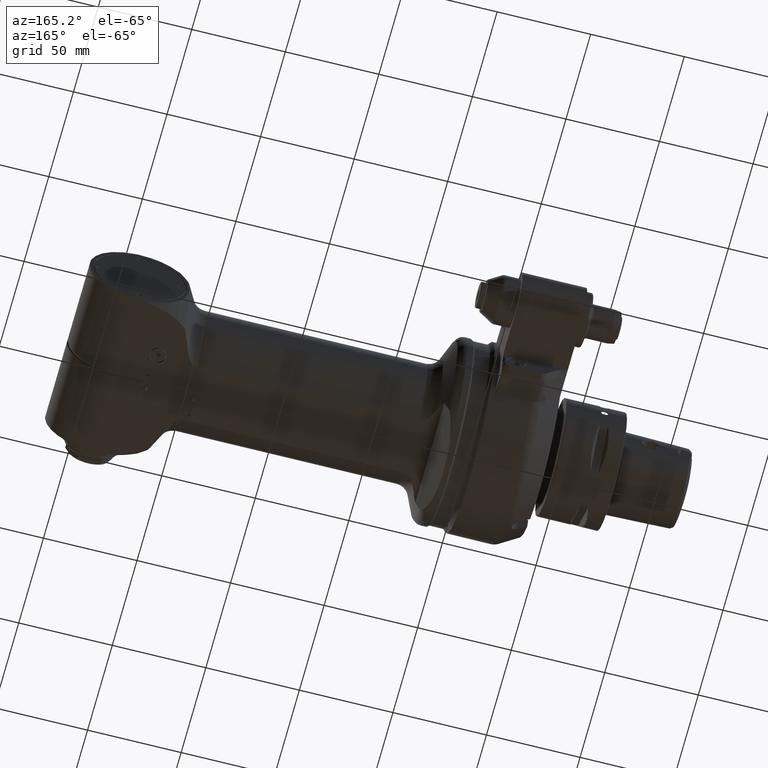
[diagram: clean part render]
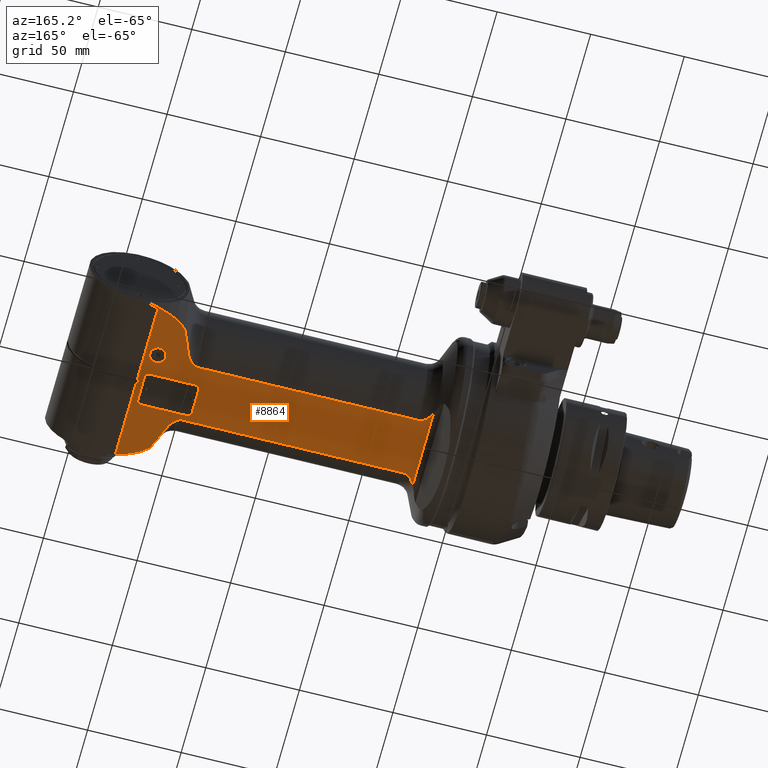
[diagram: same view with one face highlighted and labeled with its STEP entity id]
A machine part, auxiliary view. The second image highlights one B-rep face of the part: STEP entity #8864.
In plain terms, the highlighted planar face has unit normal (0, -0, 1).
Its self-contained STEP definition (entity closure, byte-faithful):
#170=FACE_BOUND('',#1647,.T.);
#171=FACE_BOUND('',#1648,.T.);
#299=(
BOUNDED_CURVE()
B_SPLINE_CURVE(2,(#56972,#56973,#56974),.UNSPECIFIED.,.F.,.F.)
B_SPLINE_CURVE_WITH_KNOTS((3,3),(2.12423993609386,3.54863226023933),
 .UNSPECIFIED.)
CURVE()
GEOMETRIC_REPRESENTATION_ITEM()
RATIONAL_B_SPLINE_CURVE((1.40912554154302,1.52349322258341,1.60728382082311))
REPRESENTATION_ITEM('')
);
#316=(
BOUNDED_CURVE()
B_SPLINE_CURVE(2,(#57158,#57159,#57160),.UNSPECIFIED.,.F.,.F.)
B_SPLINE_CURVE_WITH_KNOTS((3,3),(5.91107555424202,6.53511731411264),
 .UNSPECIFIED.)
CURVE()
GEOMETRIC_REPRESENTATION_ITEM()
RATIONAL_B_SPLINE_CURVE((2.83542029122673,2.86424913789448,2.87870857147959))
REPRESENTATION_ITEM('')
);
#317=(
BOUNDED_CURVE()
B_SPLINE_CURVE(2,(#57195,#57196,#57197),.UNSPECIFIED.,.F.,.F.)
B_SPLINE_CURVE_WITH_KNOTS((3,3),(-3.54863226084122,-2.12423993658404),
 .UNSPECIFIED.)
CURVE()
GEOMETRIC_REPRESENTATION_ITEM()
RATIONAL_B_SPLINE_CURVE((1.60728382093994,1.52349322269415,1.40912554164544))
REPRESENTATION_ITEM('')
);
#318=(
BOUNDED_CURVE()
B_SPLINE_CURVE(2,(#57199,#57200,#57201),.UNSPECIFIED.,.F.,.F.)
B_SPLINE_CURVE_WITH_KNOTS((3,3),(-1.06197991282781,-0.715484194262542),
 .UNSPECIFIED.)
CURVE()
GEOMETRIC_REPRESENTATION_ITEM()
RATIONAL_B_SPLINE_CURVE((1.14759960327966,1.12564160792822,1.10229961893862))
REPRESENTATION_ITEM('')
);
#319=(
BOUNDED_CURVE()
B_SPLINE_CURVE(2,(#57203,#57204,#57205),.UNSPECIFIED.,.F.,.F.)
B_SPLINE_CURVE_WITH_KNOTS((3,3),(-0.569171372732523,-0.304481153605402),
 .UNSPECIFIED.)
CURVE()
GEOMETRIC_REPRESENTATION_ITEM()
RATIONAL_B_SPLINE_CURVE((1.0595868818926,1.04623787947966,1.03241798748541))
REPRESENTATION_ITEM('')
);
#320=(
BOUNDED_CURVE()
B_SPLINE_CURVE(2,(#57207,#57208,#57209),.UNSPECIFIED.,.F.,.F.)
B_SPLINE_CURVE_WITH_KNOTS((3,3),(-0.281743364850995,-0.0530632981389049),
 .UNSPECIFIED.)
CURVE()
GEOMETRIC_REPRESENTATION_ITEM()
RATIONAL_B_SPLINE_CURVE((1.02386561523219,1.01431977729104,1.00454739642562))
REPRESENTATION_ITEM('')
);
#321=(
BOUNDED_CURVE()
B_SPLINE_CURVE(2,(#57231,#57232,#57233),.UNSPECIFIED.,.F.,.F.)
B_SPLINE_CURVE_WITH_KNOTS((3,3),(-6.53511731429747,-5.911075554207),
 .UNSPECIFIED.)
CURVE()
GEOMETRIC_REPRESENTATION_ITEM()
RATIONAL_B_SPLINE_CURVE((2.87870857148808,2.86424913790213,2.83542029122343))
REPRESENTATION_ITEM('')
);
#322=(
BOUNDED_CURVE()
B_SPLINE_CURVE(2,(#57239,#57240,#57241),.UNSPECIFIED.,.F.,.F.)
B_SPLINE_CURVE_WITH_KNOTS((3,3),(-19.7822048317223,-19.5535247650058),
 .UNSPECIFIED.)
CURVE()
GEOMETRIC_REPRESENTATION_ITEM()
RATIONAL_B_SPLINE_CURVE((1.00454739642698,1.01431977729258,1.0238656152339))
REPRESENTATION_ITEM('')
);
#323=(
BOUNDED_CURVE()
B_SPLINE_CURVE(2,(#57243,#57244,#57245),.UNSPECIFIED.,.F.,.F.)
B_SPLINE_CURVE_WITH_KNOTS((3,3),(-15.8409907111608,-15.5763004920326),
 .UNSPECIFIED.)
CURVE()
GEOMETRIC_REPRESENTATION_ITEM()
RATIONAL_B_SPLINE_CURVE((1.03241798748774,1.04623787948202,1.05958688189499))
REPRESENTATION_ITEM('')
);
#324=(
BOUNDED_CURVE()
B_SPLINE_CURVE(2,(#57246,#57247,#57248),.UNSPECIFIED.,.F.,.F.)
B_SPLINE_CURVE_WITH_KNOTS((3,3),(-12.4032535953773,-12.0567578768101),
 .UNSPECIFIED.)
CURVE()
GEOMETRIC_REPRESENTATION_ITEM()
RATIONAL_B_SPLINE_CURVE((1.10229961894271,1.1256416079324,1.14759960328392))
REPRESENTATION_ITEM('')
);
#524=PLANE('',#9712);
#1064=FACE_OUTER_BOUND('',#1646,.T.);
#1646=EDGE_LOOP('',(#7627,#7628,#7629,#7630,#7631,#7632,#7633,#7634,#7635,
#7636,#7637,#7638,#7639,#7640,#7641,#7642,#7643,#7644,#7645,#7646,#7647,
#7648));
#1647=EDGE_LOOP('',(#7649));
#1648=EDGE_LOOP('',(#7650,#7651,#7652,#7653,#7654,#7655,#7656,#7657));
#2113=CIRCLE('',#9713,0.167322834645669);
#2114=CIRCLE('',#9714,0.078740157480315);
#2115=CIRCLE('',#9715,0.078740157480315);
#2116=CIRCLE('',#9716,0.078740157480315);
#2117=CIRCLE('',#9717,0.078740157480315);
#2404=B_SPLINE_CURVE_WITH_KNOTS('',3,(#56937,#56938,#56939,#56940,#56941,
#56942,#56943,#56944,#56945,#56946,#56947,#56948),.UNSPECIFIED.,.F.,.F.,
(4,2,2,2,2,4),(-2.93602857360432,-2.81022163538033,-2.66127008993984,-2.44574033067297,
-2.2302105714061,-2.12135907273542),.UNSPECIFIED.);
#2405=B_SPLINE_CURVE_WITH_KNOTS('',3,(#56956,#56957,#56958,#56959,#56960,
#56961,#56962,#56963,#56964,#56965,#56966,#56967,#56968,#56969),
 .UNSPECIFIED.,.F.,.F.,(4,2,2,2,2,2,4),(2.93597407218818,3.04857089918351,
3.17816712005981,3.36008479279991,3.54200246554002,3.77852981809237,3.92307824233944),
 .UNSPECIFIED.);
#2413=B_SPLINE_CURVE_WITH_KNOTS('',3,(#57165,#57166,#57167,#57168,#57169,
#57170,#57171,#57172,#57173,#57174,#57175,#57176),.UNSPECIFIED.,.F.,.F.,
(4,2,2,2,2,4),(2.12339512886387,2.32994567883634,2.51186335157645,2.69378102431655,
2.82337724519285,2.93597407218818),.UNSPECIFIED.);
#2414=B_SPLINE_CURVE_WITH_KNOTS('',3,(#57180,#57181,#57182,#57183,#57184,
#57185,#57186,#57187,#57188,#57189,#57190,#57191,#57192,#57193),
 .UNSPECIFIED.,.F.,.F.,(4,2,2,2,2,2,4),(-3.92307824233944,-3.77852981809237,
-3.54200246554002,-3.36008479279991,-3.17816712005981,-3.04857089918351,
-2.93597407218818),.UNSPECIFIED.);
#2415=B_SPLINE_CURVE_WITH_KNOTS('',3,(#57212,#57213,#57214,#57215,#57216,
#57217,#57218,#57219,#57220,#57221,#57222,#57223,#57224,#57225,#57226,#57227,
#57228,#57229),.UNSPECIFIED.,.F.,.F.,(4,2,2,2,2,2,2,2,4),(1.07151663617778,
1.09324356313691,1.11216026242346,1.11735936317211,1.12158336061007,1.12580735804802,
1.13100645879667,1.14992315808322,1.17165008503223),.UNSPECIFIED.);
#2828=LINE('',#56951,#3384);
#2835=LINE('',#57142,#3391);
#2840=LINE('',#57163,#3396);
#2841=LINE('',#57178,#3397);
#2842=LINE('',#57210,#3398);
#2843=LINE('',#57235,#3399);
#2844=LINE('',#57237,#3400);
#2845=LINE('',#57253,#3401);
#2846=LINE('',#57257,#3402);
#2847=LINE('',#57261,#3403);
#2848=LINE('',#57265,#3404);
#3384=VECTOR('',#11633,4.66106684935039);
#3391=VECTOR('',#11688,1.67849474882285);
#3396=VECTOR('',#11703,1.64449587742559);
#3397=VECTOR('',#11704,4.66106684935039);
#3398=VECTOR('',#11705,0.393700787401575);
#3399=VECTOR('',#11706,1.67849474881537);
#3400=VECTOR('',#11707,0.393700787401575);
#3401=VECTOR('',#11710,0.984251968503937);
#3402=VECTOR('',#11713,0.551181102362205);
#3403=VECTOR('',#11716,0.984251968503937);
#3404=VECTOR('',#11719,0.551181102362205);
#4156=VERTEX_POINT('',#56926);
#4158=VERTEX_POINT('',#56930);
#4159=VERTEX_POINT('',#56950);
#4160=VERTEX_POINT('',#56954);
#4161=VERTEX_POINT('',#56971);
#4194=VERTEX_POINT('',#57139);
#4195=VERTEX_POINT('',#57141);
#4199=VERTEX_POINT('',#57156);
#4200=VERTEX_POINT('',#57162);
#4201=VERTEX_POINT('',#57164);
#4202=VERTEX_POINT('',#57177);
#4203=VERTEX_POINT('',#57179);
#4204=VERTEX_POINT('',#57194);
#4205=VERTEX_POINT('',#57198);
#4206=VERTEX_POINT('',#57202);
#4207=VERTEX_POINT('',#57206);
#4208=VERTEX_POINT('',#57211);
#4209=VERTEX_POINT('',#57230);
#4210=VERTEX_POINT('',#57234);
#4211=VERTEX_POINT('',#57236);
#4212=VERTEX_POINT('',#57238);
#4213=VERTEX_POINT('',#57242);
#4214=VERTEX_POINT('',#57249);
#4215=VERTEX_POINT('',#57251);
#4216=VERTEX_POINT('',#57252);
#4217=VERTEX_POINT('',#57254);
#4218=VERTEX_POINT('',#57256);
#4219=VERTEX_POINT('',#57258);
#4220=VERTEX_POINT('',#57260);
#4221=VERTEX_POINT('',#57262);
#4222=VERTEX_POINT('',#57264);
#5334=EDGE_CURVE('',#4156,#4158,#2404,.T.);
#5335=EDGE_CURVE('',#4156,#4159,#2828,.T.);
#5338=EDGE_CURVE('',#4159,#4160,#2405,.T.);
#5339=EDGE_CURVE('',#4161,#4160,#299,.T.);
#5380=EDGE_CURVE('',#4194,#4195,#2835,.T.);
#5388=EDGE_CURVE('',#4199,#4194,#316,.T.);
#5389=EDGE_CURVE('',#4200,#4158,#2840,.T.);
#5390=EDGE_CURVE('',#4200,#4201,#2413,.T.);
#5391=EDGE_CURVE('',#4202,#4201,#2841,.T.);
#5392=EDGE_CURVE('',#4203,#4202,#2414,.T.);
#5393=EDGE_CURVE('',#4203,#4204,#317,.T.);
#5394=EDGE_CURVE('',#4204,#4205,#318,.T.);
#5395=EDGE_CURVE('',#4205,#4206,#319,.T.);
#5396=EDGE_CURVE('',#4206,#4207,#320,.T.);
#5397=EDGE_CURVE('',#4207,#4195,#2842,.T.);
#5398=EDGE_CURVE('',#4208,#4199,#2415,.F.);
#5399=EDGE_CURVE('',#4209,#4208,#321,.T.);
#5400=EDGE_CURVE('',#4210,#4209,#2843,.T.);
#5401=EDGE_CURVE('',#4210,#4211,#2844,.T.);
#5402=EDGE_CURVE('',#4211,#4212,#322,.T.);
#5403=EDGE_CURVE('',#4212,#4213,#323,.T.);
#5404=EDGE_CURVE('',#4213,#4161,#324,.T.);
#5405=EDGE_CURVE('',#4214,#4214,#2113,.T.);
#5406=EDGE_CURVE('',#4215,#4216,#2845,.T.);
#5407=EDGE_CURVE('',#4216,#4217,#2114,.T.);
#5408=EDGE_CURVE('',#4217,#4218,#2846,.T.);
#5409=EDGE_CURVE('',#4218,#4219,#2115,.T.);
#5410=EDGE_CURVE('',#4219,#4220,#2847,.T.);
#5411=EDGE_CURVE('',#4220,#4221,#2116,.T.);
#5412=EDGE_CURVE('',#4221,#4222,#2848,.T.);
#5413=EDGE_CURVE('',#4222,#4215,#2117,.T.);
#7627=ORIENTED_EDGE('',*,*,#5389,.F.);
#7628=ORIENTED_EDGE('',*,*,#5390,.T.);
#7629=ORIENTED_EDGE('',*,*,#5391,.F.);
#7630=ORIENTED_EDGE('',*,*,#5392,.F.);
#7631=ORIENTED_EDGE('',*,*,#5393,.T.);
#7632=ORIENTED_EDGE('',*,*,#5394,.T.);
#7633=ORIENTED_EDGE('',*,*,#5395,.T.);
#7634=ORIENTED_EDGE('',*,*,#5396,.T.);
#7635=ORIENTED_EDGE('',*,*,#5397,.T.);
#7636=ORIENTED_EDGE('',*,*,#5380,.F.);
#7637=ORIENTED_EDGE('',*,*,#5388,.F.);
#7638=ORIENTED_EDGE('',*,*,#5398,.F.);
#7639=ORIENTED_EDGE('',*,*,#5399,.F.);
#7640=ORIENTED_EDGE('',*,*,#5400,.F.);
#7641=ORIENTED_EDGE('',*,*,#5401,.T.);
#7642=ORIENTED_EDGE('',*,*,#5402,.T.);
#7643=ORIENTED_EDGE('',*,*,#5403,.T.);
#7644=ORIENTED_EDGE('',*,*,#5404,.T.);
#7645=ORIENTED_EDGE('',*,*,#5339,.T.);
#7646=ORIENTED_EDGE('',*,*,#5338,.F.);
#7647=ORIENTED_EDGE('',*,*,#5335,.F.);
#7648=ORIENTED_EDGE('',*,*,#5334,.T.);
#7649=ORIENTED_EDGE('',*,*,#5405,.T.);
#7650=ORIENTED_EDGE('',*,*,#5406,.T.);
#7651=ORIENTED_EDGE('',*,*,#5407,.T.);
#7652=ORIENTED_EDGE('',*,*,#5408,.T.);
#7653=ORIENTED_EDGE('',*,*,#5409,.T.);
#7654=ORIENTED_EDGE('',*,*,#5410,.T.);
#7655=ORIENTED_EDGE('',*,*,#5411,.T.);
#7656=ORIENTED_EDGE('',*,*,#5412,.T.);
#7657=ORIENTED_EDGE('',*,*,#5413,.T.);
#8864=ADVANCED_FACE('',(#1064,#170,#171),#524,.F.);
#9712=AXIS2_PLACEMENT_3D('',#57161,#11701,#11702);
#9713=AXIS2_PLACEMENT_3D('',#57250,#11708,#11709);
#9714=AXIS2_PLACEMENT_3D('',#57255,#11711,#11712);
#9715=AXIS2_PLACEMENT_3D('',#57259,#11714,#11715);
#9716=AXIS2_PLACEMENT_3D('',#57263,#11717,#11718);
#9717=AXIS2_PLACEMENT_3D('',#57266,#11720,#11721);
#11633=DIRECTION('',(1.,0.,0.));
#11688=DIRECTION('',(-1.18254221909099E-7,0.999999999999993,-8.79004123880594E-10));
#11701=DIRECTION('center_axis',(0.,0.,1.));
#11702=DIRECTION('ref_axis',(-1.,0.,0.));
#11703=DIRECTION('',(-6.217432505124E-14,-1.,0.));
#11704=DIRECTION('',(-1.,0.,0.));
#11705=DIRECTION('',(0.986272311683691,0.165127003261456,0.));
#11706=DIRECTION('',(1.18262918331099E-7,0.999999999999993,8.78708548888194E-10));
#11707=DIRECTION('',(-0.98627231169139,0.165127003215467,0.));
#11708=DIRECTION('center_axis',(0.,0.,1.));
#11709=DIRECTION('ref_axis',(0.,-1.,0.));
#11710=DIRECTION('',(1.,0.,0.));
#11711=DIRECTION('center_axis',(0.,0.,1.));
#11712=DIRECTION('ref_axis',(0.,-1.,0.));
#11713=DIRECTION('',(0.,1.,0.));
#11714=DIRECTION('center_axis',(0.,0.,1.));
#11715=DIRECTION('ref_axis',(1.,0.,0.));
#11716=DIRECTION('',(-1.,0.,0.));
#11717=DIRECTION('center_axis',(0.,0.,1.));
#11718=DIRECTION('ref_axis',(-4.263256414561E-14,1.,0.));
#11719=DIRECTION('',(0.,-1.,0.));
#11720=DIRECTION('center_axis',(0.,0.,1.));
#11721=DIRECTION('ref_axis',(-1.,-2.6645352591E-14,0.));
#56926=CARTESIAN_POINT('',(1.29882282964606,-0.609918637198032,-1.10236220472441));
#56930=CARTESIAN_POINT('',(1.05515079531181,-0.822247938712992,-1.10236220472441));
#56937=CARTESIAN_POINT('Ctrl Pts',(1.29882282964606,-0.609918637198018,
-1.10236220472441));
#56938=CARTESIAN_POINT('Ctrl Pts',(1.28231273276627,-0.609918637198018,
-1.10236220472441));
#56939=CARTESIAN_POINT('Ctrl Pts',(1.26280331788659,-0.613368663514366,
-1.10236220472441));
#56940=CARTESIAN_POINT('Ctrl Pts',(1.22866170867155,-0.62496594699931,-1.10236220472441));
#56941=CARTESIAN_POINT('Ctrl Pts',(1.20806115716543,-0.636184018925863,
-1.10236220472441));
#56942=CARTESIAN_POINT('Ctrl Pts',(1.16907570063858,-0.663897784311517,
-1.10236220472441));
#56943=CARTESIAN_POINT('Ctrl Pts',(1.14695062442608,-0.685336707334488,
-1.10236220472441));
#56944=CARTESIAN_POINT('Ctrl Pts',(1.1075728855005,-0.732619663498112,-1.10236220472441));
#56945=CARTESIAN_POINT('Ctrl Pts',(1.09028536652498,-0.758434657097313,
-1.10236220472441));
#56946=CARTESIAN_POINT('Ctrl Pts',(1.06895390881284,-0.795274172270582,
-1.10236220472441));
#56947=CARTESIAN_POINT('Ctrl Pts',(1.06188735165125,-0.808490195991991,
-1.10236220472441));
#56948=CARTESIAN_POINT('Ctrl Pts',(1.05515079531172,-0.822247938712946,
-1.10236220472441));
#56950=CARTESIAN_POINT('',(5.95988967899606,-0.609918637198032,-1.10236220472441));
#56951=CARTESIAN_POINT('',(1.29882282964606,-0.609918637198032,-1.10236220472441));
#56954=CARTESIAN_POINT('',(6.23265358570079,-0.890843188896457,-1.10236220472441));
#56956=CARTESIAN_POINT('Ctrl Pts',(5.95988967899606,-0.609918637198018,
-1.10236220472441));
#56957=CARTESIAN_POINT('Ctrl Pts',(5.97466616547839,-0.609918637198018,
-1.10236220472441));
#56958=CARTESIAN_POINT('Ctrl Pts',(5.99218144673303,-0.612681077884935,
-1.10236220472441));
#56959=CARTESIAN_POINT('Ctrl Pts',(6.02258160732738,-0.621957083575724,
-1.10236220472441));
#56960=CARTESIAN_POINT('Ctrl Pts',(6.04095429479564,-0.630843346219758,
-1.10236220472441));
#56961=CARTESIAN_POINT('Ctrl Pts',(6.07549207969027,-0.652715813008637,
-1.10236220472441));
#56962=CARTESIAN_POINT('Ctrl Pts',(6.09530192747626,-0.66961033150076,-1.10236220472441));
#56963=CARTESIAN_POINT('Ctrl Pts',(6.13111876248837,-0.707291425706548,
-1.10236220472441));
#56964=CARTESIAN_POINT('Ctrl Pts',(6.14716951561264,-0.728036376621219,
-1.10236220472441));
#56965=CARTESIAN_POINT('Ctrl Pts',(6.17801718778163,-0.773467351676783,
-1.10236220472441));
#56966=CARTESIAN_POINT('Ctrl Pts',(6.19477582516281,-0.803106865547372,
-1.10236220472441));
#56967=CARTESIAN_POINT('Ctrl Pts',(6.21789661909274,-0.852710079953338,
-1.10236220472441));
#56968=CARTESIAN_POINT('Ctrl Pts',(6.22579523798971,-0.871943804981988,
-1.10236220472441));
#56969=CARTESIAN_POINT('Ctrl Pts',(6.23265358569994,-0.890843188896764,
-1.10236220472441));
#56971=CARTESIAN_POINT('',(6.4372265157276,-1.38692243730871,-1.10236220472422));
#56972=CARTESIAN_POINT('Ctrl Pts',(6.43722651572742,-1.38692243730977,-1.10236220472441));
#56973=CARTESIAN_POINT('Ctrl Pts',(6.31266287166401,-1.11132285485823,-1.10236220472441));
#56974=CARTESIAN_POINT('Ctrl Pts',(6.23265358569894,-0.890843188897127,
-1.10236220472441));
#57139=CARTESIAN_POINT('',(7.07672407929876,0.0255100456739172,-1.10236220136525));
#57141=CARTESIAN_POINT('',(7.07672388591367,1.70400474920935,-1.10236221188351));
#57142=CARTESIAN_POINT('',(7.07672407997638,0.0255100341781811,-1.10236220327165));
#57156=CARTESIAN_POINT('',(7.0083378498189,0.011135539862252,-1.10236220472441));
#57158=CARTESIAN_POINT('Ctrl Pts',(7.00833784981914,0.0111355398617664,
-1.10236220472441));
#57159=CARTESIAN_POINT('Ctrl Pts',(7.04304260533775,0.020756909409658,-1.10236220472441));
#57160=CARTESIAN_POINT('Ctrl Pts',(7.07672407870341,0.0255100498926877,
-1.10236220472441));
#57161=CARTESIAN_POINT('Origin',(2.40012035433071,-2.36220481889764,-1.10236220472441));
#57162=CARTESIAN_POINT('',(1.05515079531181,0.822247938712598,-1.10236220472441));
#57163=CARTESIAN_POINT('',(1.05515079531181,0.822247938712598,-1.10236220472441));
#57164=CARTESIAN_POINT('',(1.29882282964606,0.609918637198032,-1.10236220472441));
#57165=CARTESIAN_POINT('Ctrl Pts',(1.05515079531187,0.822247938712628,-1.10236220472441));
#57166=CARTESIAN_POINT('Ctrl Pts',(1.06817565313058,0.795647902460424,-1.10236220472441));
#57167=CARTESIAN_POINT('Ctrl Pts',(1.08290520393418,0.770212741661284,-1.10236220472441));
#57168=CARTESIAN_POINT('Ctrl Pts',(1.11154299302949,0.728036376621218,-1.10236220472441));
#57169=CARTESIAN_POINT('Ctrl Pts',(1.12759374615375,0.707291425706548,-1.10236220472441));
#57170=CARTESIAN_POINT('Ctrl Pts',(1.16341058116586,0.669610331500759,-1.10236220472441));
#57171=CARTESIAN_POINT('Ctrl Pts',(1.18322042895185,0.652715813008637,-1.10236220472441));
#57172=CARTESIAN_POINT('Ctrl Pts',(1.21775821384649,0.630843346219758,-1.10236220472441));
#57173=CARTESIAN_POINT('Ctrl Pts',(1.23613090131474,0.621957083575724,-1.10236220472441));
#57174=CARTESIAN_POINT('Ctrl Pts',(1.2665310619091,0.612681077884935,-1.10236220472441));
#57175=CARTESIAN_POINT('Ctrl Pts',(1.28404634316374,0.609918637198018,-1.10236220472441));
#57176=CARTESIAN_POINT('Ctrl Pts',(1.29882282964606,0.609918637198018,-1.10236220472441));
#57177=CARTESIAN_POINT('',(5.95988967899606,0.609918637198032,-1.10236220472441));
#57178=CARTESIAN_POINT('',(5.95988967899606,0.609918637198032,-1.10236220472441));
#57179=CARTESIAN_POINT('',(6.23265358570079,0.890843188896457,-1.10236220472441));
#57180=CARTESIAN_POINT('Ctrl Pts',(6.23265358569994,0.890843188896764,-1.10236220472441));
#57181=CARTESIAN_POINT('Ctrl Pts',(6.22579523798971,0.871943804981988,-1.10236220472441));
#57182=CARTESIAN_POINT('Ctrl Pts',(6.21789661909274,0.852710079953338,-1.10236220472441));
#57183=CARTESIAN_POINT('Ctrl Pts',(6.19477582516281,0.803106865547372,-1.10236220472441));
#57184=CARTESIAN_POINT('Ctrl Pts',(6.17801718778163,0.773467351676783,-1.10236220472441));
#57185=CARTESIAN_POINT('Ctrl Pts',(6.14716951561264,0.728036376621219,-1.10236220472441));
#57186=CARTESIAN_POINT('Ctrl Pts',(6.13111876248837,0.707291425706548,-1.10236220472441));
#57187=CARTESIAN_POINT('Ctrl Pts',(6.09530192747626,0.66961033150076,-1.10236220472441));
#57188=CARTESIAN_POINT('Ctrl Pts',(6.07549207969027,0.652715813008637,-1.10236220472441));
#57189=CARTESIAN_POINT('Ctrl Pts',(6.04095429479564,0.630843346219758,-1.10236220472441));
#57190=CARTESIAN_POINT('Ctrl Pts',(6.02258160732738,0.621957083575724,-1.10236220472441));
#57191=CARTESIAN_POINT('Ctrl Pts',(5.99218144673303,0.612681077884935,-1.10236220472441));
#57192=CARTESIAN_POINT('Ctrl Pts',(5.97466616547839,0.609918637198018,-1.10236220472441));
#57193=CARTESIAN_POINT('Ctrl Pts',(5.95988967899606,0.609918637198018,-1.10236220472441));
#57194=CARTESIAN_POINT('',(6.4372265157276,1.38692243730871,-1.10236220472422));
#57195=CARTESIAN_POINT('Ctrl Pts',(6.23265358569894,0.890843188897126,-1.10236220472441));
#57196=CARTESIAN_POINT('Ctrl Pts',(6.31266287166401,1.11132285485823,-1.10236220472441));
#57197=CARTESIAN_POINT('Ctrl Pts',(6.43722651572742,1.38692243730978,-1.10236220472441));
#57198=CARTESIAN_POINT('',(6.62624240498402,1.53492824327766,-1.10236220472428));
#57199=CARTESIAN_POINT('Ctrl Pts',(6.43722651572794,1.38692243730937,-1.10236220472441));
#57200=CARTESIAN_POINT('Ctrl Pts',(6.526947177898,1.45853814987678,-1.10236220472441));
#57201=CARTESIAN_POINT('Ctrl Pts',(6.62624240498941,1.53492824328213,-1.10236220472441));
#57202=CARTESIAN_POINT('',(6.84257920966527,1.63089095883542,-1.10236220472438));
#57203=CARTESIAN_POINT('Ctrl Pts',(6.62624240498844,1.53492824327984,-1.10236220472441));
#57204=CARTESIAN_POINT('Ctrl Pts',(6.73113199291588,1.5819303896752,-1.10236220472441));
#57205=CARTESIAN_POINT('Ctrl Pts',(6.84257920966751,1.63089095883701,-1.10236220472441));
#57206=CARTESIAN_POINT('',(7.06297591047305,1.701703043577,-1.10236220723977));
#57207=CARTESIAN_POINT('Ctrl Pts',(6.8425792096674,1.63089095883564,-1.10236220472441));
#57208=CARTESIAN_POINT('Ctrl Pts',(6.95043602609958,1.66577376480631,-1.10236220472441));
#57209=CARTESIAN_POINT('Ctrl Pts',(7.0629759068464,1.70170305493684,-1.10236220472441));
#57210=CARTESIAN_POINT('',(7.06297667740157,1.7017031523185,-1.10236220472441));
#57211=CARTESIAN_POINT('',(7.00833784981496,-0.0111355398612047,-1.10236220472441));
#57212=CARTESIAN_POINT('Ctrl Pts',(7.00833784981906,0.0111355398616761,
-1.10236220472441));
#57213=CARTESIAN_POINT('Ctrl Pts',(7.0055236109728,0.0103553346267147,-1.10236220472441));
#57214=CARTESIAN_POINT('Ctrl Pts',(7.00279777682779,0.00943098458916705,
-1.10236220472441));
#57215=CARTESIAN_POINT('Ctrl Pts',(6.99798875041606,0.00712386826101465,
-1.10236220472441));
#57216=CARTESIAN_POINT('Ctrl Pts',(6.99544270113515,0.00557722017459993,
-1.10236220472441));
#57217=CARTESIAN_POINT('Ctrl Pts',(6.9935033548984,0.00307623733199464,
-1.10236220472441));
#57218=CARTESIAN_POINT('Ctrl Pts',(6.99308689988115,0.00237130709113423,
-1.10236220472441));
#57219=CARTESIAN_POINT('Ctrl Pts',(6.99266709824445,0.00120811619196399,
-1.10236220472441));
#57220=CARTESIAN_POINT('Ctrl Pts',(6.99254441811085,0.000554330372435217,
-1.10236220472441));
#57221=CARTESIAN_POINT('Ctrl Pts',(6.99254441811085,-0.000554330372435217,
-1.10236220472441));
#57222=CARTESIAN_POINT('Ctrl Pts',(6.99266709824445,-0.00120811619196399,
-1.10236220472441));
#57223=CARTESIAN_POINT('Ctrl Pts',(6.99308689988115,-0.00237130709113423,
-1.10236220472441));
#57224=CARTESIAN_POINT('Ctrl Pts',(6.9935033548984,-0.00307623733199464,
-1.10236220472441));
#57225=CARTESIAN_POINT('Ctrl Pts',(6.99544270113515,-0.00557722017459993,
-1.10236220472441));
#57226=CARTESIAN_POINT('Ctrl Pts',(6.99798875041606,-0.00712386826101465,
-1.10236220472441));
#57227=CARTESIAN_POINT('Ctrl Pts',(7.00279777682659,-0.00943098458859284,
-1.10236220472441));
#57228=CARTESIAN_POINT('Ctrl Pts',(7.00552361097027,-0.0103553346258397,
-1.10236220472441));
#57229=CARTESIAN_POINT('Ctrl Pts',(7.00833784981514,-0.0111355398605876,
-1.10236220472441));
#57230=CARTESIAN_POINT('',(7.07672407931844,-0.0255100456780618,-1.10236220136645));
#57231=CARTESIAN_POINT('Ctrl Pts',(7.07672407872329,-0.0255100498954101,
-1.10236220472441));
#57232=CARTESIAN_POINT('Ctrl Pts',(7.04304260534606,-0.0207569094121339,
-1.10236220472441));
#57233=CARTESIAN_POINT('Ctrl Pts',(7.00833784981523,-0.0111355398606002,
-1.10236220472441));
#57234=CARTESIAN_POINT('',(7.07672388591794,-1.70400474920983,-1.10236221188345));
#57235=CARTESIAN_POINT('',(7.07672388149213,-1.70400478300118,-1.10236220474724));
#57236=CARTESIAN_POINT('',(7.06297591047684,-1.70170304357769,-1.10236220723963));
#57237=CARTESIAN_POINT('',(7.07672388149213,-1.70400478300118,-1.10236220472441));
#57238=CARTESIAN_POINT('',(6.84257920966527,-1.63089095883542,-1.10236220472438));
#57239=CARTESIAN_POINT('Ctrl Pts',(7.06297590685004,-1.701703054938,-1.10236220472441));
#57240=CARTESIAN_POINT('Ctrl Pts',(6.95043602610133,-1.66577376480687,-1.10236220472441));
#57241=CARTESIAN_POINT('Ctrl Pts',(6.84257920966739,-1.63089095883564,-1.10236220472441));
#57242=CARTESIAN_POINT('',(6.62624240498402,-1.53492824327766,-1.10236220472428));
#57243=CARTESIAN_POINT('Ctrl Pts',(6.84257920966751,-1.63089095883701,-1.10236220472441));
#57244=CARTESIAN_POINT('Ctrl Pts',(6.73113199291588,-1.5819303896752,-1.10236220472441));
#57245=CARTESIAN_POINT('Ctrl Pts',(6.62624240498844,-1.53492824327984,-1.10236220472441));
#57246=CARTESIAN_POINT('Ctrl Pts',(6.62624240498941,-1.53492824328213,-1.10236220472441));
#57247=CARTESIAN_POINT('Ctrl Pts',(6.526947177898,-1.45853814987678,-1.10236220472441));
#57248=CARTESIAN_POINT('Ctrl Pts',(6.43722651572794,-1.38692243730937,-1.10236220472441));
#57249=CARTESIAN_POINT('',(6.81102362204724,0.836614173228346,-1.10236220472441));
#57250=CARTESIAN_POINT('Origin',(6.81102362204724,0.669291338582677,-1.10236220472441));
#57251=CARTESIAN_POINT('',(5.88582677165354,-0.492125978105118,-1.10236220472441));
#57252=CARTESIAN_POINT('',(6.87007874015748,-0.492125978105118,-1.10236220472441));
#57253=CARTESIAN_POINT('',(5.88582677165354,-0.492125978105118,-1.10236220472441));
#57254=CARTESIAN_POINT('',(6.9488188976378,-0.413385820624803,-1.10236220472441));
#57255=CARTESIAN_POINT('Origin',(6.87007874015748,-0.413385820624803,-1.10236220472441));
#57256=CARTESIAN_POINT('',(6.9488188976378,0.137795281737598,-1.10236220472441));
#57257=CARTESIAN_POINT('',(6.9488188976378,-0.413385820624803,-1.10236220472441));
#57258=CARTESIAN_POINT('',(6.87007874015748,0.216535439217913,-1.10236220472441));
#57259=CARTESIAN_POINT('Origin',(6.87007874015748,0.137795281737598,-1.10236220472441));
#57260=CARTESIAN_POINT('',(5.88582677165354,0.216535439217913,-1.10236220472441));
#57261=CARTESIAN_POINT('',(6.87007874015748,0.216535439217913,-1.10236220472441));
#57262=CARTESIAN_POINT('',(5.80708661417323,0.137795281737598,-1.10236220472441));
#57263=CARTESIAN_POINT('Origin',(5.88582677165354,0.137795281737598,-1.10236220472441));
#57264=CARTESIAN_POINT('',(5.80708661417323,-0.413385820624803,-1.10236220472441));
#57265=CARTESIAN_POINT('',(5.80708661417323,0.137795281737598,-1.10236220472441));
#57266=CARTESIAN_POINT('Origin',(5.88582677165354,-0.413385820624803,-1.10236220472441));